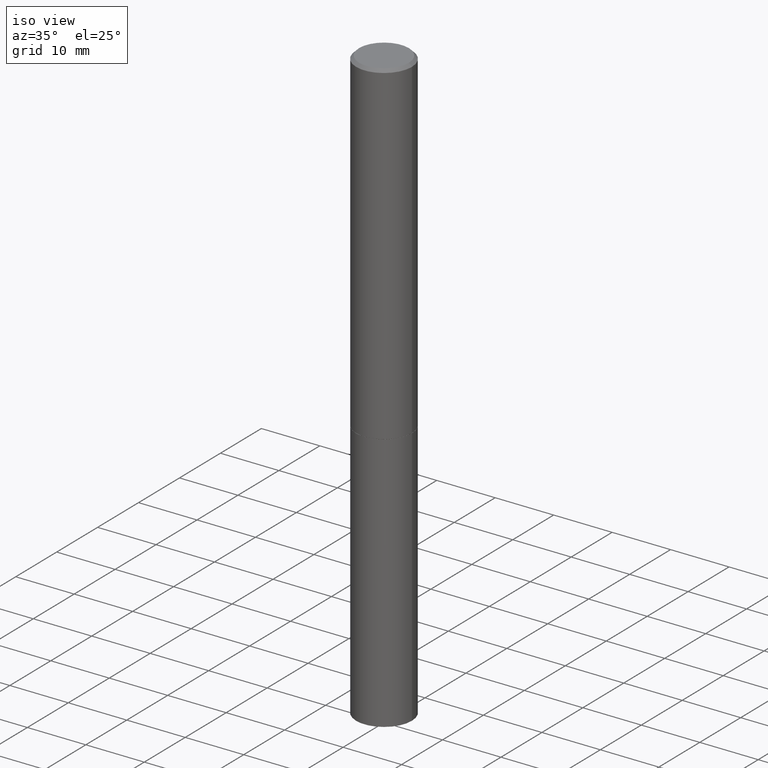
[diagram: clean part render]
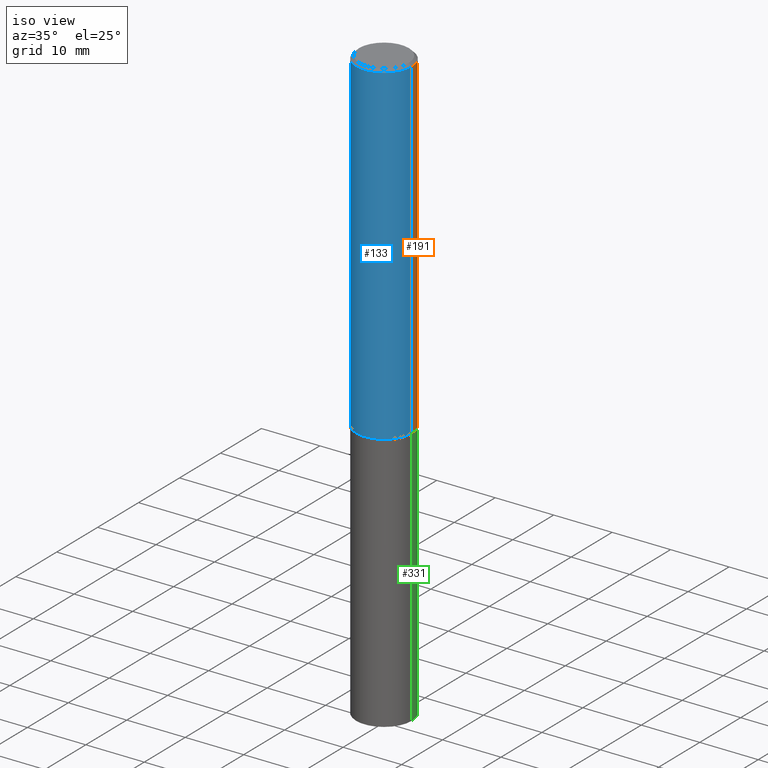
[diagram: same view with three faces highlighted in distinct colors, each labeled with its STEP entity id]
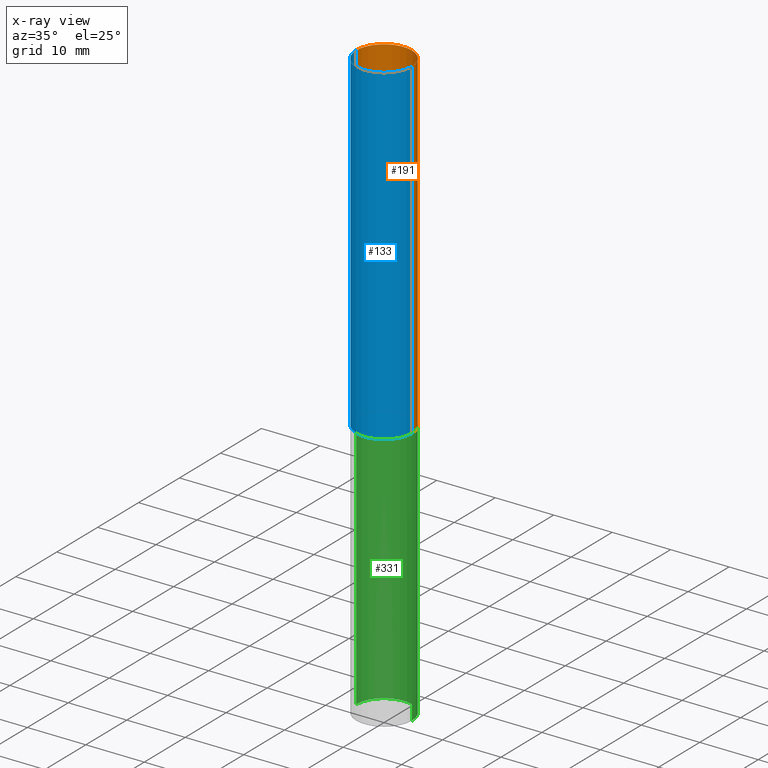
[diagram: x-ray of the same camera — body ghosted, the three highlighted faces saturated]
A machine part, iso view with three faces highlighted in distinct colors.
The next image is the same camera in x-ray (body ghosted, the three faces saturated) — at least one of them is partly hidden behind the body in this view.
Their STEP definitions:

[orange] entity #191 — the highlighted cylindrical surface (edge-blend (fillet) strip) has radius 4.7625 mm, axis along (-0, 0, 1).
#10 = DIRECTION ( 'NONE',  ( -2.445468806185136597E-29, 3.491481338843145583E-15, 1.000000000000000000 ) ) ;
#11 = DIRECTION ( 'NONE',  ( -2.445468806185136597E-29, 3.491481338843145583E-15, 1.000000000000000000 ) ) ;
#21 = VECTOR ( 'NONE', #212, 39.37007874015748143 ) ;
#27 = CARTESIAN_POINT ( 'NONE',  ( 0.1874999999999998335, -1.309305502066173825E-15, 9.142831454617371204E-30 ) ) ;
#42 = AXIS2_PLACEMENT_3D ( 'NONE', #243, #223, #332 ) ;
#48 = EDGE_CURVE ( 'NONE', #139, #322, #113, .T. ) ;
#52 = VERTEX_POINT ( 'NONE', #357 ) ;
#59 = LINE ( 'NONE', #27, #21 ) ;
#110 = ORIENTED_EDGE ( 'NONE', *, *, #138, .T. ) ;
#113 = LINE ( 'NONE', #269, #130 ) ;
#115 = ORIENTED_EDGE ( 'NONE', *, *, #198, .F. ) ;
#125 = DIRECTION ( 'NONE',  ( 1.000000000000000000, -6.982962677686266711E-15, 0.000000000000000000 ) ) ;
#130 = VECTOR ( 'NONE', #241, 39.37007874015748143 ) ;
#138 = EDGE_CURVE ( 'NONE', #317, #139, #159, .T. ) ;
#139 = VERTEX_POINT ( 'NONE', #192 ) ;
#142 = CARTESIAN_POINT ( 'NONE',  ( -0.1874999999999996947, 1.239475875289309738E-15, -0.02000000000000004552 ) ) ;
#145 = CARTESIAN_POINT ( 'NONE',  ( 0.1875000000000000278, -9.161647033124408872E-15, -2.249000000000000110 ) ) ;
#159 = CIRCLE ( 'NONE', #42, 0.1875000000000000278 ) ;
#167 = AXIS2_PLACEMENT_3D ( 'NONE', #278, #11, #220 ) ;
#191 = ADVANCED_FACE ( 'NONE', ( #363 ), #245, .T. ) ;
#192 = CARTESIAN_POINT ( 'NONE',  ( -0.1875000000000000278, -2.628817949367357182E-15, -2.249000000000000110 ) ) ;
#198 = EDGE_CURVE ( 'NONE', #52, #322, #205, .T. ) ;
#205 = CIRCLE ( 'NONE', #296, 0.1874999999999996947 ) ;
#212 = DIRECTION ( 'NONE',  ( -2.445468806185136877E-29, 3.491481338843145188E-15, 1.000000000000000000 ) ) ;
#220 = DIRECTION ( 'NONE',  ( 1.000000000000000000, -6.982962677686266711E-15, 4.876176775795935793E-29 ) ) ;
#223 = DIRECTION ( 'NONE',  ( -2.445468806185136597E-29, 3.491481338843145583E-15, 1.000000000000000000 ) ) ;
#233 = EDGE_LOOP ( 'NONE', ( #110, #287, #115, #342 ) ) ;
#241 = DIRECTION ( 'NONE',  ( -2.445468806185136877E-29, 3.491481338843145188E-15, 1.000000000000000000 ) ) ;
#243 = CARTESIAN_POINT ( 'NONE',  ( 5.499859345110371740E-29, -7.852341531058233864E-15, -2.249000000000000110 ) ) ;
#245 = CYLINDRICAL_SURFACE ( 'NONE', #167, 0.1874999999999998335 ) ;
#269 = CARTESIAN_POINT ( 'NONE',  ( -0.1874999999999998335, 1.332267629550186665E-15, -9.223003294227939583E-30 ) ) ;
#276 = CARTESIAN_POINT ( 'NONE',  ( 4.890937612370284544E-31, -6.982962677686307633E-17, -0.02000000000000004552 ) ) ;
#278 = CARTESIAN_POINT ( 'NONE',  ( 0.000000000000000000, 0.000000000000000000, 0.000000000000000000 ) ) ;
#287 = ORIENTED_EDGE ( 'NONE', *, *, #48, .T. ) ;
#296 = AXIS2_PLACEMENT_3D ( 'NONE', #276, #10, #125 ) ;
#317 = VERTEX_POINT ( 'NONE', #145 ) ;
#322 = VERTEX_POINT ( 'NONE', #142 ) ;
#332 = DIRECTION ( 'NONE',  ( 1.000000000000000000, -6.982962677686261189E-15, 0.000000000000000000 ) ) ;
#337 = EDGE_CURVE ( 'NONE', #317, #52, #59, .T. ) ;
#342 = ORIENTED_EDGE ( 'NONE', *, *, #337, .F. ) ;
#357 = CARTESIAN_POINT ( 'NONE',  ( 0.1874999999999996947, -1.356173001359023297E-15, -0.02000000000000004552 ) ) ;
#363 = FACE_OUTER_BOUND ( 'NONE', #233, .T. ) ;

[blue] entity #133 — the highlighted cylindrical surface (edge-blend (fillet) strip) has radius 4.7625 mm, axis along (-0, 0, 1).
#8 = DIRECTION ( 'NONE',  ( -2.445468806185136597E-29, 3.491481338843145583E-15, 1.000000000000000000 ) ) ;
#18 = ORIENTED_EDGE ( 'NONE', *, *, #337, .T. ) ;
#21 = VECTOR ( 'NONE', #212, 39.37007874015748143 ) ;
#27 = CARTESIAN_POINT ( 'NONE',  ( 0.1874999999999998335, -1.309305502066173825E-15, 9.142831454617371204E-30 ) ) ;
#28 = AXIS2_PLACEMENT_3D ( 'NONE', #298, #319, #111 ) ;
#48 = EDGE_CURVE ( 'NONE', #139, #322, #113, .T. ) ;
#52 = VERTEX_POINT ( 'NONE', #357 ) ;
#59 = LINE ( 'NONE', #27, #21 ) ;
#69 = CARTESIAN_POINT ( 'NONE',  ( 0.000000000000000000, 0.000000000000000000, 0.000000000000000000 ) ) ;
#91 = DIRECTION ( 'NONE',  ( -2.445468806185136597E-29, 3.491481338843145583E-15, 1.000000000000000000 ) ) ;
#111 = DIRECTION ( 'NONE',  ( 1.000000000000000000, -6.982962677686261189E-15, 0.000000000000000000 ) ) ;
#113 = LINE ( 'NONE', #269, #130 ) ;
#130 = VECTOR ( 'NONE', #241, 39.37007874015748143 ) ;
#133 = ADVANCED_FACE ( 'NONE', ( #153 ), #274, .T. ) ;
#139 = VERTEX_POINT ( 'NONE', #192 ) ;
#142 = CARTESIAN_POINT ( 'NONE',  ( -0.1874999999999996947, 1.239475875289309738E-15, -0.02000000000000004552 ) ) ;
#145 = CARTESIAN_POINT ( 'NONE',  ( 0.1875000000000000278, -9.161647033124408872E-15, -2.249000000000000110 ) ) ;
#153 = FACE_OUTER_BOUND ( 'NONE', #350, .T. ) ;
#155 = CARTESIAN_POINT ( 'NONE',  ( 4.890937612370284544E-31, -6.982962677686307633E-17, -0.02000000000000004552 ) ) ;
#160 = AXIS2_PLACEMENT_3D ( 'NONE', #155, #91, #390 ) ;
#173 = ORIENTED_EDGE ( 'NONE', *, *, #347, .T. ) ;
#192 = CARTESIAN_POINT ( 'NONE',  ( -0.1875000000000000278, -2.628817949367357182E-15, -2.249000000000000110 ) ) ;
#212 = DIRECTION ( 'NONE',  ( -2.445468806185136877E-29, 3.491481338843145188E-15, 1.000000000000000000 ) ) ;
#221 = DIRECTION ( 'NONE',  ( 1.000000000000000000, -6.982962677686266711E-15, 4.876176775795935793E-29 ) ) ;
#236 = ORIENTED_EDGE ( 'NONE', *, *, #48, .F. ) ;
#241 = DIRECTION ( 'NONE',  ( -2.445468806185136877E-29, 3.491481338843145188E-15, 1.000000000000000000 ) ) ;
#258 = CIRCLE ( 'NONE', #160, 0.1874999999999996947 ) ;
#265 = EDGE_CURVE ( 'NONE', #322, #52, #258, .T. ) ;
#269 = CARTESIAN_POINT ( 'NONE',  ( -0.1874999999999998335, 1.332267629550186665E-15, -9.223003294227939583E-30 ) ) ;
#274 = CYLINDRICAL_SURFACE ( 'NONE', #377, 0.1874999999999998335 ) ;
#298 = CARTESIAN_POINT ( 'NONE',  ( 5.499859345110371740E-29, -7.852341531058233864E-15, -2.249000000000000110 ) ) ;
#317 = VERTEX_POINT ( 'NONE', #145 ) ;
#319 = DIRECTION ( 'NONE',  ( -2.445468806185136597E-29, 3.491481338843145583E-15, 1.000000000000000000 ) ) ;
#322 = VERTEX_POINT ( 'NONE', #142 ) ;
#337 = EDGE_CURVE ( 'NONE', #317, #52, #59, .T. ) ;
#345 = CIRCLE ( 'NONE', #28, 0.1875000000000000278 ) ;
#347 = EDGE_CURVE ( 'NONE', #139, #317, #345, .T. ) ;
#350 = EDGE_LOOP ( 'NONE', ( #236, #173, #18, #352 ) ) ;
#352 = ORIENTED_EDGE ( 'NONE', *, *, #265, .F. ) ;
#357 = CARTESIAN_POINT ( 'NONE',  ( 0.1874999999999996947, -1.356173001359023297E-15, -0.02000000000000004552 ) ) ;
#377 = AXIS2_PLACEMENT_3D ( 'NONE', #69, #8, #221 ) ;
#390 = DIRECTION ( 'NONE',  ( 1.000000000000000000, -6.982962677686266711E-15, 0.000000000000000000 ) ) ;

[green] entity #331 — the highlighted cylindrical surface (edge-blend (fillet) strip) has radius 4.7625 mm, axis along (-0, 0, 1).
#9 = EDGE_CURVE ( 'NONE', #234, #339, #307, .T. ) ;
#19 = ORIENTED_EDGE ( 'NONE', *, *, #65, .T. ) ;
#23 = ORIENTED_EDGE ( 'NONE', *, *, #376, .F. ) ;
#31 = CARTESIAN_POINT ( 'NONE',  ( 5.502304813916557343E-29, -7.855833012397078448E-15, -2.250000000000000000 ) ) ;
#44 = CARTESIAN_POINT ( 'NONE',  ( 9.781875224740546387E-29, -1.396592535537258233E-14, -4.000000000000000000 ) ) ;
#47 = VERTEX_POINT ( 'NONE', #144 ) ;
#55 = DIRECTION ( 'NONE',  ( -2.445468806185136597E-29, 3.491481338843145583E-15, 1.000000000000000000 ) ) ;
#63 = DIRECTION ( 'NONE',  ( -2.445468806185136877E-29, 3.491481338843145188E-15, 1.000000000000000000 ) ) ;
#65 = EDGE_CURVE ( 'NONE', #170, #47, #165, .T. ) ;
#83 = DIRECTION ( 'NONE',  ( -2.445468806185136597E-29, 3.491481338843145583E-15, 1.000000000000000000 ) ) ;
#90 = CARTESIAN_POINT ( 'NONE',  ( -0.1875000000000000278, -9.578611554334641752E-15, -2.250000000000000000 ) ) ;
#116 = CYLINDRICAL_SURFACE ( 'NONE', #137, 0.1875000000000000278 ) ;
#117 = CARTESIAN_POINT ( 'NONE',  ( 0.000000000000000000, 0.000000000000000000, 0.000000000000000000 ) ) ;
#137 = AXIS2_PLACEMENT_3D ( 'NONE', #117, #184, #242 ) ;
#144 = CARTESIAN_POINT ( 'NONE',  ( -0.1874999999999996947, -1.265661985330641048E-14, -4.000000000000000000 ) ) ;
#165 = CIRCLE ( 'NONE', #385, 0.1875000000000000278 ) ;
#170 = VERTEX_POINT ( 'NONE', #303 ) ;
#176 = LINE ( 'NONE', #384, #386 ) ;
#179 = DIRECTION ( 'NONE',  ( -2.445468806185136877E-29, 3.491481338843145188E-15, 1.000000000000000000 ) ) ;
#184 = DIRECTION ( 'NONE',  ( -2.445468806185136597E-29, 3.491481338843145583E-15, 1.000000000000000000 ) ) ;
#209 = DIRECTION ( 'NONE',  ( 1.000000000000000000, -6.982962677686261189E-15, 0.000000000000000000 ) ) ;
#218 = AXIS2_PLACEMENT_3D ( 'NONE', #31, #55, #262 ) ;
#234 = VERTEX_POINT ( 'NONE', #246 ) ;
#235 = ORIENTED_EDGE ( 'NONE', *, *, #380, .T. ) ;
#240 = LINE ( 'NONE', #323, #312 ) ;
#242 = DIRECTION ( 'NONE',  ( 1.000000000000000000, -6.982962677686265922E-15, 4.876176775795935793E-29 ) ) ;
#246 = CARTESIAN_POINT ( 'NONE',  ( 0.1875000000000000278, -9.165138514463253457E-15, -2.250000000000000000 ) ) ;
#259 = EDGE_LOOP ( 'NONE', ( #19, #235, #379, #23 ) ) ;
#262 = DIRECTION ( 'NONE',  ( 1.000000000000000000, -6.982962677686266711E-15, 0.000000000000000000 ) ) ;
#294 = FACE_OUTER_BOUND ( 'NONE', #259, .T. ) ;
#303 = CARTESIAN_POINT ( 'NONE',  ( 0.1874999999999996947, -1.525226872995474292E-14, -4.000000000000000000 ) ) ;
#307 = CIRCLE ( 'NONE', #218, 0.1875000000000000278 ) ;
#312 = VECTOR ( 'NONE', #179, 39.37007874015748143 ) ;
#323 = CARTESIAN_POINT ( 'NONE',  ( 0.1875000000000000278, -1.309305502066175008E-15, 9.142831454617381013E-30 ) ) ;
#331 = ADVANCED_FACE ( 'NONE', ( #294 ), #116, .T. ) ;
#339 = VERTEX_POINT ( 'NONE', #90 ) ;
#376 = EDGE_CURVE ( 'NONE', #170, #234, #240, .T. ) ;
#379 = ORIENTED_EDGE ( 'NONE', *, *, #9, .F. ) ;
#380 = EDGE_CURVE ( 'NONE', #47, #339, #176, .T. ) ;
#384 = CARTESIAN_POINT ( 'NONE',  ( -0.1875000000000000278, 1.332267629550188046E-15, -9.223003294227947991E-30 ) ) ;
#385 = AXIS2_PLACEMENT_3D ( 'NONE', #44, #83, #209 ) ;
#386 = VECTOR ( 'NONE', #63, 39.37007874015748143 ) ;